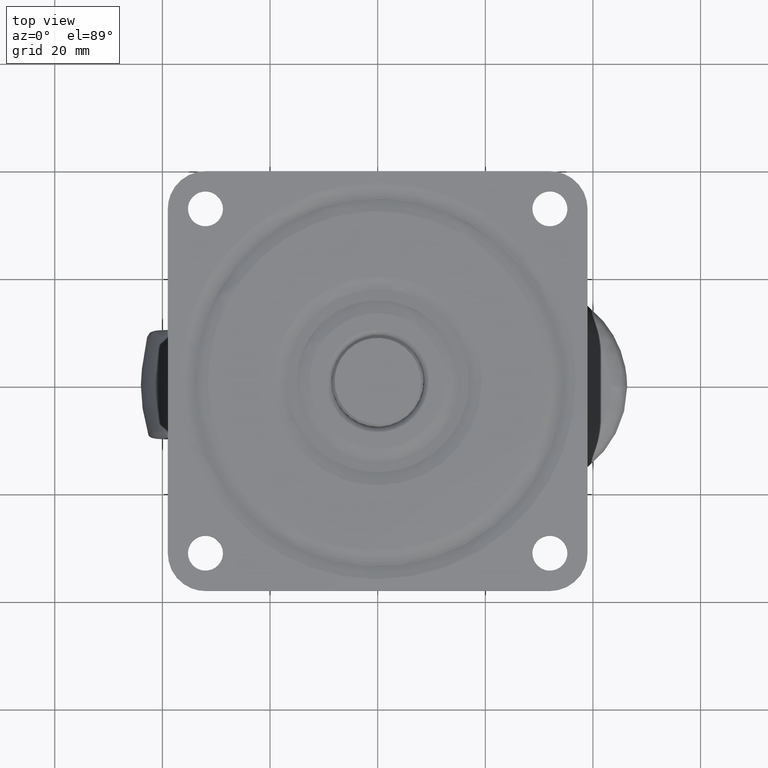
[diagram: clean part render]
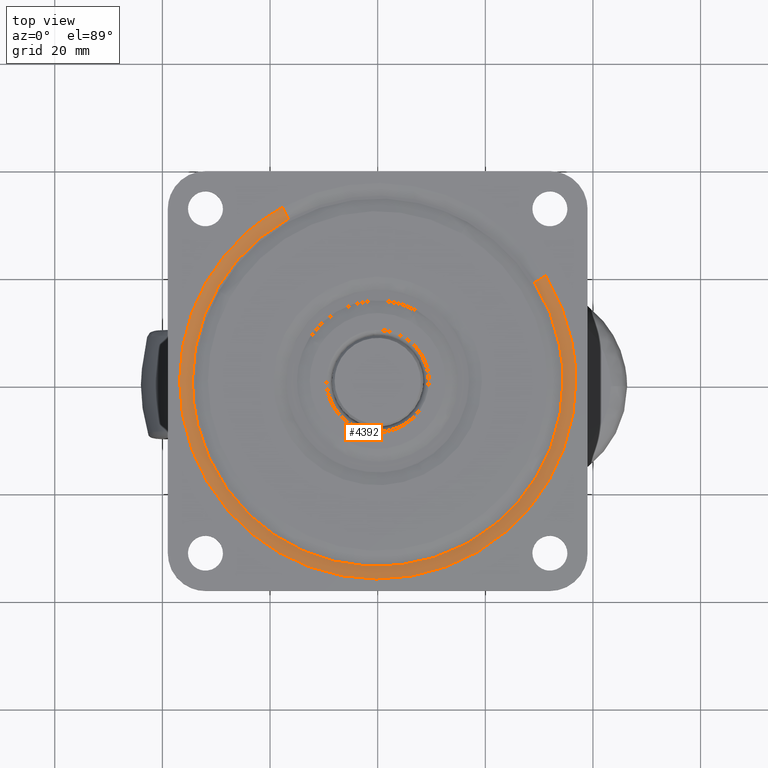
[diagram: same view with one face highlighted and labeled with its STEP entity id]
A machine part, top view. The second image highlights one B-rep face of the part: STEP entity #4392.
In plain terms, the highlighted face is a freeform B-spline surface patch.
Its self-contained STEP definition (entity closure, byte-faithful):
#4231=CARTESIAN_POINT('',(29.085160962630486,18.229997128595038,-0.659311464106404));
#4232=CARTESIAN_POINT('',(29.606895144850977,17.397593120928644,-0.659311464106404));
#4233=CARTESIAN_POINT('',(30.080168294058755,16.536712458400256,-0.659311464106403));
#4234=CARTESIAN_POINT('',(46.616880752458997,-13.543455835658495,-0.659311464106404));
#4235=CARTESIAN_POINT('',(16.536712458400256,-30.080168294058755,-0.659311464106403));
#4236=CARTESIAN_POINT('',(-13.543455835658492,-46.616880752458997,-0.659311464106404));
#4237=CARTESIAN_POINT('',(-30.080168294058755,-16.536712458400256,-0.659311464106403));
#4238=CARTESIAN_POINT('',(-46.616880752458997,13.543455835658486,-0.659311464106404));
#4239=CARTESIAN_POINT('',(-16.536712458400256,30.080168294058755,-0.659311464106403));
#4240=CARTESIAN_POINT('',(30.110588292048256,18.872714468027574,0.032573177846686));
#4241=CARTESIAN_POINT('',(30.650716750643141,18.010963199066154,0.032573177846686));
#4242=CARTESIAN_POINT('',(31.140675632554981,17.119731301423130,0.032573177846686));
#4243=CARTESIAN_POINT('',(48.260406933978089,-14.020944331131847,0.032573177846686));
#4244=CARTESIAN_POINT('',(17.119731301423130,-31.140675632554981,0.032573177846686));
#4245=CARTESIAN_POINT('',(-14.020944331131844,-48.260406933978089,0.032573177846686));
#4246=CARTESIAN_POINT('',(-31.140675632554981,-17.119731301423130,0.032573177846686));
#4247=CARTESIAN_POINT('',(-48.260406933978089,14.020944331131842,0.032573177846686));
#4248=CARTESIAN_POINT('',(-17.119731301423130,31.140675632554981,0.032573177846686));
#4249=CARTESIAN_POINT('',(31.291416041616234,19.612833682483622,-0.001493203496884));
#4250=CARTESIAN_POINT('',(31.852726373712027,18.717287663258755,-0.001493203496884));
#4251=CARTESIAN_POINT('',(32.361899660812405,17.791104892327244,-0.001493203496884));
#4252=CARTESIAN_POINT('',(50.153004553139652,-14.570794768485165,-0.001493203496884));
#4253=CARTESIAN_POINT('',(17.791104892327244,-32.361899660812405,-0.001493203496884));
#4254=CARTESIAN_POINT('',(-14.570794768485159,-50.153004553139652,-0.001493203496884));
#4255=CARTESIAN_POINT('',(-32.361899660812405,-17.791104892327251,-0.001493203496884));
#4256=CARTESIAN_POINT('',(-50.153004553139652,14.570794768485156,-0.001493203496884));
#4257=CARTESIAN_POINT('',(-17.791104892327251,32.361899660812405,-0.001493203496884));
#4265=(BOUNDED_SURFACE()B_SPLINE_SURFACE(2,2,((#4231,#4240,#4249),(#4232,#4241,#4250),(#4233,#4242,#4251),(#4234,#4243,#4252),(#4235,#4244,#4253),(#4236,#4245,#4254),(#4237,#4246,#4255),(#4238,#4247,#4256),(#4239,#4248,#4257)),.UNSPECIFIED.,.F.,.F.,.U.)B_SPLINE_SURFACE_WITH_KNOTS((3,2,2,2,3),(3,3),(0.0,2.447494744052971,63.634921698254828,124.822348652456700,186.009775606658510),(0.0,2.735868454600757),.UNSPECIFIED.)GEOMETRIC_REPRESENTATION_ITEM()RATIONAL_B_SPLINE_SURFACE(((0.922241947045783,0.888067704285069,0.921632788469296),(0.932411041391273,0.897859976583012,0.931795165932025),(0.943464403893648,0.908503749937238,0.942841227475482),(0.667130077801322,0.642409162314028,0.666689425530162),(0.943464403893648,0.908503749937238,0.942841227475482),(0.667130077801322,0.642409162314028,0.666689425530162),(0.943464403893648,0.908503749937238,0.942841227475482),(0.667130077801322,0.642409162314028,0.666689425530162),(0.943464403893648,0.908503749937238,0.942841227475482)))REPRESENTATION_ITEM('')SURFACE());
#4266=CARTESIAN_POINT('',(29.175610153899040,18.286691115340570,-0.599999999601456));
#4267=VERTEX_POINT('',#4266);
#4268=CARTESIAN_POINT('',(34.432822999999900,0.0,-0.600000000000000));
#4269=VERTEX_POINT('',#4268);
#4270=CARTESIAN_POINT('',(29.175610153899040,18.286691115340574,-0.599999999601456));
#4271=CARTESIAN_POINT('',(34.432822999999900,9.899039595923819,-0.600000000000000));
#4272=CARTESIAN_POINT('',(34.432822999999900,0.0,-0.600000000000000));
#4280=(BOUNDED_CURVE()B_SPLINE_CURVE(2,(#4270,#4271,#4272),.UNSPECIFIED.,.F.,.U.)B_SPLINE_CURVE_WITH_KNOTS((3,3),(0.409173271053243,0.500000000000000),.UNSPECIFIED.)CURVE()GEOMETRIC_REPRESENTATION_ITEM()RATIONAL_B_SPLINE_CURVE((0.864498809753678,0.893589868017950,1.0))REPRESENTATION_ITEM(''));
#4281=EDGE_CURVE('',#4267,#4269,#4280,.T.);
#4282=ORIENTED_EDGE('',*,*,#4281,.T.);
#4283=CARTESIAN_POINT('',(-34.432822999999900,0.0,-0.600000000000000));
#4284=VERTEX_POINT('',#4283);
#4285=CARTESIAN_POINT('',(34.432822999999900,0.0,-0.600000000000000));
#4286=CARTESIAN_POINT('',(34.432822999999900,-34.432822999999900,-0.600000000000000));
#4287=CARTESIAN_POINT('',(0.0,-34.432822999999900,-0.600000000000000));
#4288=CARTESIAN_POINT('',(-34.432822999999900,-34.432822999999900,-0.600000000000000));
#4289=CARTESIAN_POINT('',(-34.432822999999900,0.0,-0.600000000000000));
#4297=(BOUNDED_CURVE()B_SPLINE_CURVE(2,(#4285,#4286,#4287,#4288,#4289),.UNSPECIFIED.,.F.,.U.)B_SPLINE_CURVE_WITH_KNOTS((3,2,3),(0.500000000000000,0.750000000000000,1.0),.UNSPECIFIED.)CURVE()GEOMETRIC_REPRESENTATION_ITEM()RATIONAL_B_SPLINE_CURVE((1.0,0.707106781186548,1.0,0.707106781186548,1.0))REPRESENTATION_ITEM(''));
#4298=EDGE_CURVE('',#4269,#4284,#4297,.T.);
#4299=ORIENTED_EDGE('',*,*,#4298,.T.);
#4300=CARTESIAN_POINT('',(-16.588138990230888,30.173712808078282,-0.599999999731306));
#4301=VERTEX_POINT('',#4300);
#4302=CARTESIAN_POINT('',(-34.432822999999900,0.0,-0.600000000000000));
#4303=CARTESIAN_POINT('',(-34.432822999999892,20.363514756157251,-0.600000000000000));
#4304=CARTESIAN_POINT('',(-16.588138990230888,30.173712808078267,-0.599999999731306));
#4312=(BOUNDED_CURVE()B_SPLINE_CURVE(2,(#4302,#4303,#4304),.UNSPECIFIED.,.F.,.U.)B_SPLINE_CURVE_WITH_KNOTS((3,3),(0.0,0.167949183896216),.UNSPECIFIED.)CURVE()GEOMETRIC_REPRESENTATION_ITEM()RATIONAL_B_SPLINE_CURVE((1.0,0.803235291726179,0.870842360845681))REPRESENTATION_ITEM(''));
#4313=EDGE_CURVE('',#4284,#4301,#4312,.T.);
#4314=ORIENTED_EDGE('',*,*,#4313,.T.);
#4315=CARTESIAN_POINT('',(-17.732240575535631,32.254825866063207,-8.268803E-016));
#4316=VERTEX_POINT('',#4315);
#4317=CARTESIAN_POINT('',(-16.588138990230892,30.173712808078282,-0.599999999731306));
#4318=CARTESIAN_POINT('',(-17.123675902637519,31.147850835527180,-2.480727E-012));
#4319=CARTESIAN_POINT('',(-17.732240575535631,32.254825866063207,-8.268803E-016));
#4327=(BOUNDED_CURVE()B_SPLINE_CURVE(2,(#4317,#4318,#4319),.UNSPECIFIED.,.F.,.U.)B_SPLINE_CURVE_WITH_KNOTS((3,3),(-1.443739978437789,-0.564952266539763),.UNSPECIFIED.)CURVE()GEOMETRIC_REPRESENTATION_ITEM()RATIONAL_B_SPLINE_CURVE((0.940431952137284,0.911507904351156,0.939865370532479))REPRESENTATION_ITEM(''));
#4328=EDGE_CURVE('',#4301,#4316,#4327,.T.);
#4329=ORIENTED_EDGE('',*,*,#4328,.T.);
#4330=CARTESIAN_POINT('',(-36.807691417407497,0.0,0.0));
#4331=VERTEX_POINT('',#4330);
#4332=CARTESIAN_POINT('',(-36.807691417407497,0.0,0.0));
#4333=CARTESIAN_POINT('',(-36.807691417407504,21.768008023075616,0.0));
#4334=CARTESIAN_POINT('',(-17.732240575535634,32.254825866063207,-8.268803E-016));
#4342=(BOUNDED_CURVE()B_SPLINE_CURVE(2,(#4332,#4333,#4334),.UNSPECIFIED.,.F.,.U.)B_SPLINE_CURVE_WITH_KNOTS((3,3),(0.0,0.167949183896699),.UNSPECIFIED.)CURVE()GEOMETRIC_REPRESENTATION_ITEM()RATIONAL_B_SPLINE_CURVE((1.0,0.803235291725614,0.870842360846069))REPRESENTATION_ITEM(''));
#4343=EDGE_CURVE('',#4331,#4316,#4342,.T.);
#4344=ORIENTED_EDGE('',*,*,#4343,.F.);
#4345=CARTESIAN_POINT('',(36.807691417407497,0.0,0.0));
#4346=VERTEX_POINT('',#4345);
#4347=CARTESIAN_POINT('',(36.807691417407497,0.0,0.0));
#4348=CARTESIAN_POINT('',(36.807691417407504,-36.807691417407504,0.0));
#4349=CARTESIAN_POINT('',(0.0,-36.807691417407497,0.0));
#4350=CARTESIAN_POINT('',(-36.807691417407504,-36.807691417407504,0.0));
#4351=CARTESIAN_POINT('',(-36.807691417407497,0.0,0.0));
#4359=(BOUNDED_CURVE()B_SPLINE_CURVE(2,(#4347,#4348,#4349,#4350,#4351),.UNSPECIFIED.,.F.,.U.)B_SPLINE_CURVE_WITH_KNOTS((3,2,3),(0.500000000000000,0.750000000000000,1.0),.UNSPECIFIED.)CURVE()GEOMETRIC_REPRESENTATION_ITEM()RATIONAL_B_SPLINE_CURVE((1.0,0.707106781186547,1.0,0.707106781186547,1.0))REPRESENTATION_ITEM(''));
#4360=EDGE_CURVE('',#4346,#4331,#4359,.T.);
#4361=ORIENTED_EDGE('',*,*,#4360,.F.);
#4362=CARTESIAN_POINT('',(31.187883009703420,19.547943646461860,-8.459083E-016));
#4363=VERTEX_POINT('',#4362);
#4364=CARTESIAN_POINT('',(31.187883009703413,19.547943646461864,-8.459083E-016));
#4365=CARTESIAN_POINT('',(36.807691417407504,10.581786883264709,0.0));
#4366=CARTESIAN_POINT('',(36.807691417407497,0.0,0.0));
#4374=(BOUNDED_CURVE()B_SPLINE_CURVE(2,(#4364,#4365,#4366),.UNSPECIFIED.,.F.,.U.)B_SPLINE_CURVE_WITH_KNOTS((3,3),(0.409173271053307,0.500000000000000),.UNSPECIFIED.)CURVE()GEOMETRIC_REPRESENTATION_ITEM()RATIONAL_B_SPLINE_CURVE((0.864498809753719,0.893589868018025,1.0))REPRESENTATION_ITEM(''));
#4375=EDGE_CURVE('',#4363,#4346,#4374,.T.);
#4376=ORIENTED_EDGE('',*,*,#4375,.F.);
#4377=CARTESIAN_POINT('',(29.175610153899036,18.286691115340570,-0.599999999601456));
#4378=CARTESIAN_POINT('',(30.117525107884379,18.877064640599663,-3.219058E-010));
#4379=CARTESIAN_POINT('',(31.187883009703420,19.547943646461857,-8.459083E-016));
#4387=(BOUNDED_CURVE()B_SPLINE_CURVE(2,(#4377,#4378,#4379),.UNSPECIFIED.,.F.,.U.)B_SPLINE_CURVE_WITH_KNOTS((3,3),(-1.443739978241570,-0.564952266993219),.UNSPECIFIED.)CURVE()GEOMETRIC_REPRESENTATION_ITEM()RATIONAL_B_SPLINE_CURVE((0.919277688454654,0.891004263994643,0.918723851633352))REPRESENTATION_ITEM(''));
#4388=EDGE_CURVE('',#4267,#4363,#4387,.T.);
#4389=ORIENTED_EDGE('',*,*,#4388,.F.);
#4390=EDGE_LOOP('',(#4282,#4299,#4314,#4329,#4344,#4361,#4376,#4389));
#4391=FACE_OUTER_BOUND('',#4390,.T.);
#4392=ADVANCED_FACE('',(#4391),#4265,.T.);